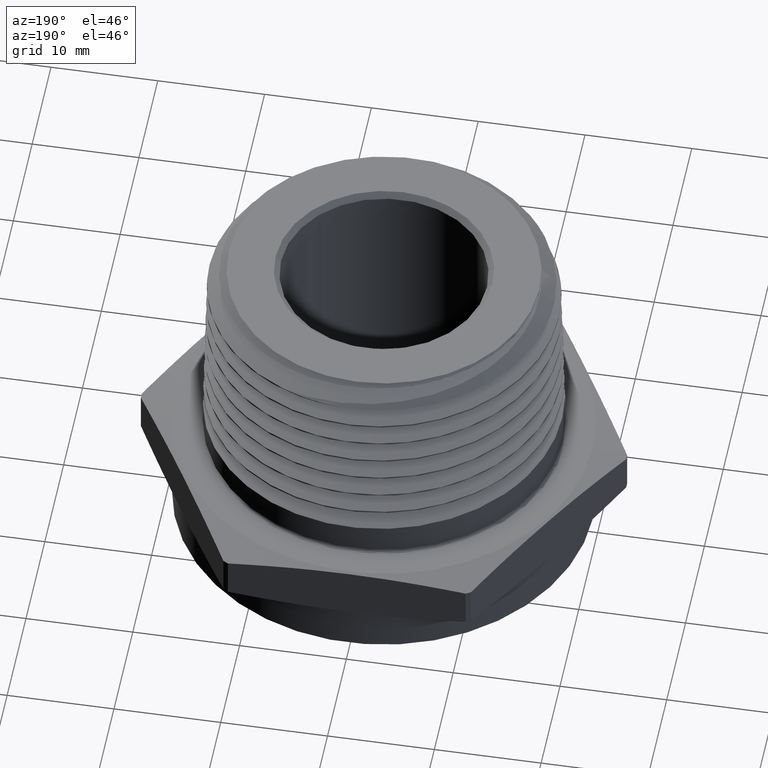
[diagram: clean part render]
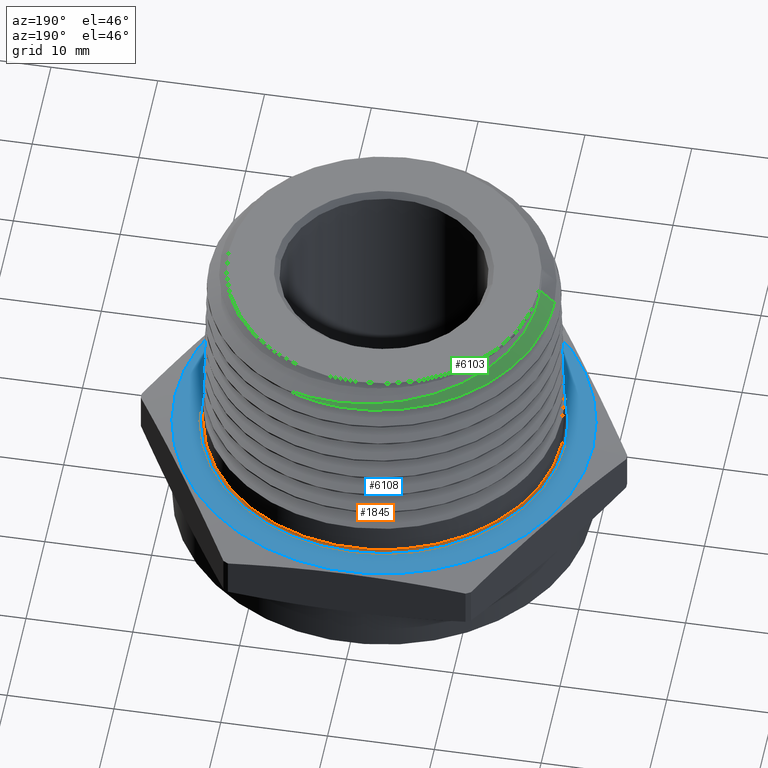
[diagram: same view with three faces highlighted in distinct colors, each labeled with its STEP entity id]
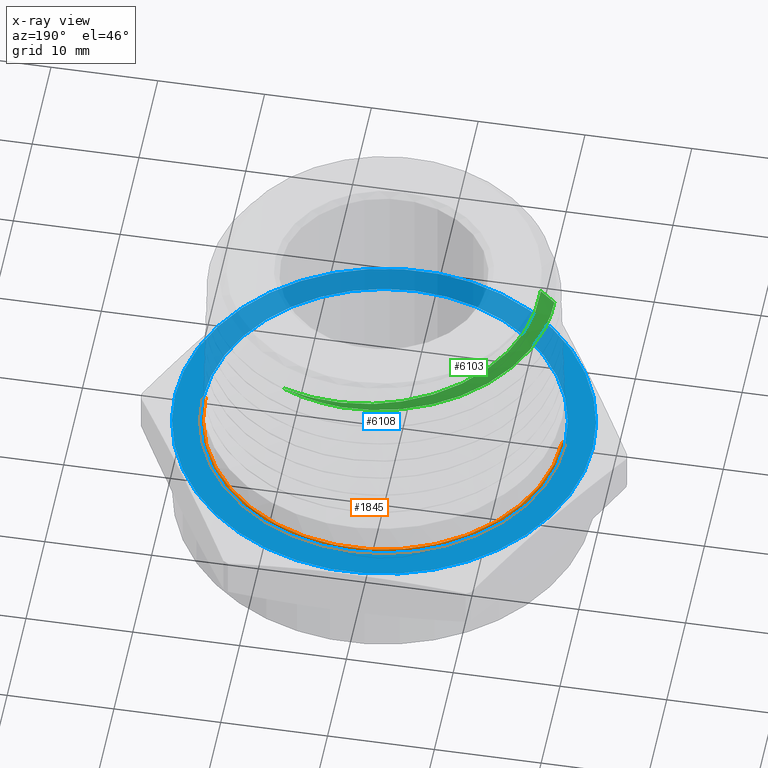
[diagram: x-ray of the same camera — body ghosted, the three highlighted faces saturated]
A machine part, auxiliary view with three faces highlighted in distinct colors.
The next image is the same camera in x-ray (body ghosted, the three faces saturated) — at least one of them is partly hidden behind the body in this view.
Their STEP definitions:

[orange] entity #1845 — the highlighted toroidal blend (fillet) surface has major radius 16.9672 mm and minor (blend) radius 0.254 mm.
#52 = AXIS2_PLACEMENT_3D ( 'NONE', #2555, #2556, #2557 ) ;
#54 = AXIS2_PLACEMENT_3D ( 'NONE', #2561, #2562, #2563 ) ;
#1845 = ADVANCED_FACE ( 'NONE', ( #5682 ), #5681, .F. ) ;
#2546 = CARTESIAN_POINT ( 'NONE',  ( 0.0000000000000000000, 0.0000000000000000000, 0.2000000000000000100 ) ) ;
#2547 = DIRECTION ( 'NONE',  ( 0.0000000000000000000, -0.0000000000000000000, -1.000000000000000000 ) ) ;
#2548 = DIRECTION ( 'NONE',  ( 1.000000000000000000, 0.0000000000000000000, 0.0000000000000000000 ) ) ;
#2555 = CARTESIAN_POINT ( 'NONE',  ( -0.6680000000000000400, 8.180640618304319800E-017, 0.2099999999999999400 ) ) ;
#2556 = DIRECTION ( 'NONE',  ( 1.224646799147353200E-016, 1.000000000000000000, 0.0000000000000000000 ) ) ;
#2557 = DIRECTION ( 'NONE',  ( -1.000000000000000000, 1.224646799147354400E-016, 0.0000000000000000000 ) ) ;
#2561 = CARTESIAN_POINT ( 'NONE',  ( 0.6680000000000000400, 0.0000000000000000000, 0.2099999999999999400 ) ) ;
#2562 = DIRECTION ( 'NONE',  ( 0.0000000000000000000, -1.000000000000000000, 0.0000000000000000000 ) ) ;
#2563 = DIRECTION ( 'NONE',  ( 0.0000000000000000000, 0.0000000000000000000, -1.000000000000000000 ) ) ;
#2630 = CARTESIAN_POINT ( 'NONE',  ( -0.6580000000000000300, 0.0000000000000000000, 0.2099999999999999400 ) ) ;
#2633 = CARTESIAN_POINT ( 'NONE',  ( 0.6580000000000000300, 8.058175938389584700E-017, 0.2099999999999999400 ) ) ;
#2635 = CARTESIAN_POINT ( 'NONE',  ( 0.6680000000000000400, 0.0000000000000000000, 0.1999999999999999800 ) ) ;
#2636 = CARTESIAN_POINT ( 'NONE',  ( -0.6680000000000000400, 8.180640618304318600E-017, 0.1999999999999999800 ) ) ;
#3448 = CARTESIAN_POINT ( 'NONE',  ( 0.0000000000000000000, 0.0000000000000000000, 0.2099999999999999400 ) ) ;
#3450 = DIRECTION ( 'NONE',  ( -0.0000000000000000000, 0.0000000000000000000, 1.000000000000000000 ) ) ;
#3452 = DIRECTION ( 'NONE',  ( 1.000000000000000000, 0.0000000000000000000, 0.0000000000000000000 ) ) ;
#5177 = ORIENTED_EDGE ( 'NONE', *, *, #5388, .F. ) ;
#5178 = ORIENTED_EDGE ( 'NONE', *, *, #6584, .F. ) ;
#5179 = ORIENTED_EDGE ( 'NONE', *, *, #5390, .T. ) ;
#5180 = ORIENTED_EDGE ( 'NONE', *, *, #5349, .F. ) ;
#5349 = EDGE_CURVE ( 'NONE', #5620, #5619, #5539, .T. ) ;
#5388 = EDGE_CURVE ( 'NONE', #5614, #5620, #5546, .T. ) ;
#5390 = EDGE_CURVE ( 'NONE', #5617, #5619, #5548, .T. ) ;
#5539 = CIRCLE ( 'NONE', #6576, 0.6680000000000000400 ) ;
#5546 = CIRCLE ( 'NONE', #52, 0.01000000000000003000 ) ;
#5548 = CIRCLE ( 'NONE', #54, 0.009999999999999995000 ) ;
#5614 = VERTEX_POINT ( 'NONE', #2630 ) ;
#5617 = VERTEX_POINT ( 'NONE', #2633 ) ;
#5619 = VERTEX_POINT ( 'NONE', #2635 ) ;
#5620 = VERTEX_POINT ( 'NONE', #2636 ) ;
#5681 = TOROIDAL_SURFACE ( 'NONE', #6526, 0.6680000000000000400, 0.01000000000000000000 ) ;
#5682 = FACE_OUTER_BOUND ( 'NONE', #6048, .T. ) ;
#5783 = CIRCLE ( 'NONE', #6135, 0.6580000000000000300 ) ;
#6048 = EDGE_LOOP ( 'NONE', ( #5177, #5178, #5179, #5180 ) ) ;
#6135 = AXIS2_PLACEMENT_3D ( 'NONE', #3448, #3450, #3452 ) ;
#6526 = AXIS2_PLACEMENT_3D ( 'NONE', #6715, #6714, #6717 ) ;
#6576 = AXIS2_PLACEMENT_3D ( 'NONE', #2546, #2547, #2548 ) ;
#6584 = EDGE_CURVE ( 'NONE', #5617, #5614, #5783, .T. ) ;
#6714 = DIRECTION ( 'NONE',  ( -0.0000000000000000000, 0.0000000000000000000, 1.000000000000000000 ) ) ;
#6715 = CARTESIAN_POINT ( 'NONE',  ( 0.0000000000000000000, 0.0000000000000000000, 0.2099999999999999400 ) ) ;
#6717 = DIRECTION ( 'NONE',  ( 1.000000000000000000, 0.0000000000000000000, 0.0000000000000000000 ) ) ;

[blue] entity #6108 — the highlighted planar face has unit normal (0, 0, 1).
#36 = EDGE_CURVE ( 'NONE', #4817, #5229, #5634, .T. ) ;
#53 = AXIS2_PLACEMENT_3D ( 'NONE', #2558, #2559, #2560 ) ;
#88 = AXIS2_PLACEMENT_3D ( 'NONE', #3269, #3268, #3273 ) ;
#2546 = CARTESIAN_POINT ( 'NONE',  ( 0.0000000000000000000, 0.0000000000000000000, 0.2000000000000000100 ) ) ;
#2547 = DIRECTION ( 'NONE',  ( 0.0000000000000000000, -0.0000000000000000000, -1.000000000000000000 ) ) ;
#2548 = DIRECTION ( 'NONE',  ( 1.000000000000000000, 0.0000000000000000000, 0.0000000000000000000 ) ) ;
#2558 = CARTESIAN_POINT ( 'NONE',  ( 0.0000000000000000000, 0.0000000000000000000, 0.2000000000000000100 ) ) ;
#2559 = DIRECTION ( 'NONE',  ( 0.0000000000000000000, -0.0000000000000000000, -1.000000000000000000 ) ) ;
#2560 = DIRECTION ( 'NONE',  ( 1.000000000000000000, 0.0000000000000000000, 0.0000000000000000000 ) ) ;
#2635 = CARTESIAN_POINT ( 'NONE',  ( 0.6680000000000000400, 0.0000000000000000000, 0.1999999999999999800 ) ) ;
#2636 = CARTESIAN_POINT ( 'NONE',  ( -0.6680000000000000400, 8.180640618304318600E-017, 0.1999999999999999800 ) ) ;
#3268 = DIRECTION ( 'NONE',  ( -0.0000000000000000000, 0.0000000000000000000, 1.000000000000000000 ) ) ;
#3269 = CARTESIAN_POINT ( 'NONE',  ( -0.4503332099679081500, -0.7800000000000000300, 0.2000000000000000100 ) ) ;
#3271 = PLANE ( 'NONE',  #88 ) ;
#3273 = DIRECTION ( 'NONE',  ( 1.000000000000000000, 0.0000000000000000000, 0.0000000000000000000 ) ) ;
#4406 = CARTESIAN_POINT ( 'NONE',  ( -0.7700000000000000200, 0.0000000000000000000, 0.2000000000000000100 ) ) ;
#4506 = CARTESIAN_POINT ( 'NONE',  ( 0.7700000000000000200, 9.429780353434618500E-017, 0.1999999999999998200 ) ) ;
#4587 = CARTESIAN_POINT ( 'NONE',  ( 2.509973095904768000E-017, 0.0000000000000000000, 0.1999999999999999300 ) ) ;
#4588 = DIRECTION ( 'NONE',  ( -1.254986547952384500E-016, -0.0000000000000000000, -1.000000000000000000 ) ) ;
#4589 = DIRECTION ( 'NONE',  ( -1.000000000000000000, 0.0000000000000000000, 1.330445451459868500E-016 ) ) ;
#4745 = AXIS2_PLACEMENT_3D ( 'NONE', #6615, #6616, #6617 ) ;
#4817 = VERTEX_POINT ( 'NONE', #4406 ) ;
#5229 = VERTEX_POINT ( 'NONE', #4506 ) ;
#5320 = EDGE_CURVE ( 'NONE', #5229, #4817, #5502, .T. ) ;
#5349 = EDGE_CURVE ( 'NONE', #5620, #5619, #5539, .T. ) ;
#5389 = EDGE_CURVE ( 'NONE', #5619, #5620, #5544, .T. ) ;
#5502 = CIRCLE ( 'NONE', #6565, 0.7700000000000000200 ) ;
#5539 = CIRCLE ( 'NONE', #6576, 0.6680000000000000400 ) ;
#5544 = CIRCLE ( 'NONE', #53, 0.6680000000000000400 ) ;
#5619 = VERTEX_POINT ( 'NONE', #2635 ) ;
#5620 = VERTEX_POINT ( 'NONE', #2636 ) ;
#5634 = CIRCLE ( 'NONE', #4745, 0.7700000000000000200 ) ;
#5753 = FACE_BOUND ( 'NONE', #6079, .T. ) ;
#5755 = FACE_OUTER_BOUND ( 'NONE', #6080, .T. ) ;
#6002 = ORIENTED_EDGE ( 'NONE', *, *, #5389, .T. ) ;
#6003 = ORIENTED_EDGE ( 'NONE', *, *, #5349, .T. ) ;
#6004 = ORIENTED_EDGE ( 'NONE', *, *, #36, .F. ) ;
#6005 = ORIENTED_EDGE ( 'NONE', *, *, #5320, .F. ) ;
#6079 = EDGE_LOOP ( 'NONE', ( #6002, #6003 ) ) ;
#6080 = EDGE_LOOP ( 'NONE', ( #6004, #6005 ) ) ;
#6108 = ADVANCED_FACE ( 'NONE', ( #5753, #5755 ), #3271, .T. ) ;
#6565 = AXIS2_PLACEMENT_3D ( 'NONE', #4587, #4588, #4589 ) ;
#6576 = AXIS2_PLACEMENT_3D ( 'NONE', #2546, #2547, #2548 ) ;
#6615 = CARTESIAN_POINT ( 'NONE',  ( 2.509973095904768000E-017, 0.0000000000000000000, 0.1999999999999999300 ) ) ;
#6616 = DIRECTION ( 'NONE',  ( -1.254986547952384500E-016, -0.0000000000000000000, -1.000000000000000000 ) ) ;
#6617 = DIRECTION ( 'NONE',  ( -1.000000000000000000, 0.0000000000000000000, 1.330445451459868500E-016 ) ) ;

[green] entity #6103 — the highlighted conical surface has half-angle 45 deg.
#13 = EDGE_CURVE ( 'NONE', #4804, #4803, #5626, .T. ) ;
#15 = EDGE_CURVE ( 'NONE', #4804, #5259, #5409, .T. ) ;
#16 = EDGE_CURVE ( 'NONE', #5234, #4803, #5410, .T. ) ;
#82 = AXIS2_PLACEMENT_3D ( 'NONE', #3252, #3253, #3251 ) ;
#3251 = DIRECTION ( 'NONE',  ( -1.000000000000000000, 0.0000000000000000000, 0.0000000000000000000 ) ) ;
#3252 = CARTESIAN_POINT ( 'NONE',  ( 0.0000000000000000000, 0.0000000000000000000, 0.9027971720943887000 ) ) ;
#3253 = DIRECTION ( 'NONE',  ( -0.0000000000000000000, -0.0000000000000000000, -1.000000000000000000 ) ) ;
#3599 = CARTESIAN_POINT ( 'NONE',  ( 0.0000000000000000000, 0.0000000000000000000, 0.9190800544205554000 ) ) ;
#3601 = DIRECTION ( 'NONE',  ( -0.0000000000000000000, -0.0000000000000000000, -1.000000000000000000 ) ) ;
#3603 = DIRECTION ( 'NONE',  ( -1.000000000000000000, 0.0000000000000000000, 0.0000000000000000000 ) ) ;
#4396 = CARTESIAN_POINT ( 'NONE',  ( -0.6283225450993632500, 4.889100257645358200E-013, 0.9336774549006376900 ) ) ;
#4397 = CARTESIAN_POINT ( 'NONE',  ( -0.5782752292204644800, 3.274842165956694300E-013, 0.9837247707795356800 ) ) ;
#4519 = CARTESIAN_POINT ( 'NONE',  ( 0.04410640094814422000, 0.6414052399374975400, 0.9190800544205554000 ) ) ;
#4542 = CARTESIAN_POINT ( 'NONE',  ( 0.2697484973617390600, 0.5835938695659517200, 0.9190800544205554000 ) ) ;
#4708 = EDGE_CURVE ( 'NONE', #5234, #5259, #5425, .T. ) ;
#4803 = VERTEX_POINT ( 'NONE', #4396 ) ;
#4804 = VERTEX_POINT ( 'NONE', #4397 ) ;
#4844 = CARTESIAN_POINT ( 'NONE',  ( -0.1291728670032285000, 0.6277182786754083000, 0.9214974034170692100 ) ) ;
#4845 = CARTESIAN_POINT ( 'NONE',  ( -0.5038835120867772900, 0.3856187828513303300, 0.9278614501530870800 ) ) ;
#4849 = CARTESIAN_POINT ( 'NONE',  ( -0.3580366091997817000, 0.4949788745045972100, 0.9532486770410064600 ) ) ;
#4852 = CARTESIAN_POINT ( 'NONE',  ( -0.5754901931969085300, 0.1023629862541672000, 0.9780408152344303200 ) ) ;
#4853 = CARTESIAN_POINT ( 'NONE',  ( 0.04410640094814422000, 0.6414052399374975400, 0.9190800544205554000 ) ) ;
#4854 = CARTESIAN_POINT ( 'NONE',  ( -0.4905521338098494700, 0.4029337313545868800, 0.9275555028913532500 ) ) ;
#4855 = CARTESIAN_POINT ( 'NONE',  ( -0.1712816809586251200, 0.6169304472873021700, 0.9221028986637400700 ) ) ;
#4856 = CARTESIAN_POINT ( 'NONE',  ( -0.5544158245478665300, 0.2021377121919719900, 0.9724433789133220000 ) ) ;
#4857 = CARTESIAN_POINT ( 'NONE',  ( -0.04301417287718850600, 0.6417499214618435100, 0.9202865603072609700 ) ) ;
#4858 = CARTESIAN_POINT ( 'NONE',  ( -0.4621374801503261900, 0.4361249314153705100, 0.9269418621697133000 ) ) ;
#4859 = CARTESIAN_POINT ( 'NONE',  ( -0.5408322365174119700, 0.3321933841693599500, 0.9287725555635533100 ) ) ;
#4860 = CARTESIAN_POINT ( 'NONE',  ( -0.4471906026599913300, 0.4518548415220121600, 0.9266377158060300500 ) ) ;
#4861 = CARTESIAN_POINT ( 'NONE',  ( -0.4002031964311008600, 0.4965315961657489900, 0.9257310148434547700 ) ) ;
#4862 = CARTESIAN_POINT ( 'NONE',  ( -0.3660421188493563300, 0.5229960302919680600, 0.9251279785155393000 ) ) ;
#4863 = CARTESIAN_POINT ( 'NONE',  ( -0.1311117142126263000, 0.6086752527680319200, 0.9398931432594783700 ) ) ;
#4864 = CARTESIAN_POINT ( 'NONE',  ( -0.3104239841555078700, 0.5575691653280147000, 0.9242147721350375500 ) ) ;
#4865 = CARTESIAN_POINT ( 'NONE',  ( -0.2912658111656816800, 0.5681483700520408900, 0.9239097320244495900 ) ) ;
#4866 = CARTESIAN_POINT ( 'NONE',  ( -0.5718437529027253800, 0.1276451828942168900, 0.9766363578434675800 ) ) ;
#4867 = CARTESIAN_POINT ( 'NONE',  ( -0.2034913068138734800, 0.5842401972764722500, 0.9438566663621034100 ) ) ;
#4868 = CARTESIAN_POINT ( 'NONE',  ( -0.2523258671832870900, 0.5871394006566421600, 0.9233045592838830000 ) ) ;
#4870 = CARTESIAN_POINT ( 'NONE',  ( -0.3961997529985840600, 0.4614841658839422000, 0.9559190479875979700 ) ) ;
#4871 = CARTESIAN_POINT ( 'NONE',  ( -0.3050216810752681700, 0.5308749679102926500, 0.9498701530135238400 ) ) ;
#4876 = CARTESIAN_POINT ( 'NONE',  ( -0.2941154152704837900, 0.5377680807815983200, 0.9491911200069774700 ) ) ;
#4879 = CARTESIAN_POINT ( 'NONE',  ( -0.1076332887552374900, 0.6320785348876915000, 0.9211927445842531500 ) ) ;
#4881 = CARTESIAN_POINT ( 'NONE',  ( 0.02010530832360203300, 0.6301756819904215100, 0.9320170440454244000 ) ) ;
#4883 = CARTESIAN_POINT ( 'NONE',  ( -0.2720364747525571000, 0.5507673225860237900, 0.9478462534385825300 ) ) ;
#4884 = CARTESIAN_POINT ( 'NONE',  ( -0.2608403269420439000, 0.5568922117506953700, 0.9471788170331904000 ) ) ;
#4886 = CARTESIAN_POINT ( 'NONE',  ( -0.2267945689784152700, 0.5741720065212850800, 0.9451830328060350000 ) ) ;
#4892 = CARTESIAN_POINT ( 'NONE',  ( -0.1556776799463705200, 0.6014855311601703400, 0.9412132048061757600 ) ) ;
#4893 = CARTESIAN_POINT ( 'NONE',  ( -0.08097408228598210200, 0.6200291040813559200, 0.9372328528343080200 ) ) ;
#4896 = CARTESIAN_POINT ( 'NONE',  ( -0.05580244168419957300, 0.6241033517460838900, 0.9359204519231547600 ) ) ;
#4897 = CARTESIAN_POINT ( 'NONE',  ( -0.005262352037625132700, 0.6291733186150217900, 0.9333160956669082100 ) ) ;
#4898 = CARTESIAN_POINT ( 'NONE',  ( 0.05830357889111763300, 0.6293681189188618000, 0.9300650632995713900 ) ) ;
#4899 = CARTESIAN_POINT ( 'NONE',  ( 0.07106094898147108400, 0.6287119757329342500, 0.9294145585776001400 ) ) ;
#4904 = CARTESIAN_POINT ( 'NONE',  ( 0.09662564964570551100, 0.6266120287156937700, 0.9281111418394644200 ) ) ;
#4906 = CARTESIAN_POINT ( 'NONE',  ( 0.1094317807253628900, 0.6251650846227156900, 0.9274582718988585400 ) ) ;
#4907 = CARTESIAN_POINT ( 'NONE',  ( 0.1727956314354577600, 0.6160609696359855600, 0.9242119778856526800 ) ) ;
#4908 = CARTESIAN_POINT ( 'NONE',  ( 0.2220121870711585800, 0.6028127258656126300, 0.9216632551212740100 ) ) ;
#4918 = CARTESIAN_POINT ( 'NONE',  ( -0.5796951784476278600, 0.02545253042749659500, 0.9823048215523573200 ) ) ;
#4919 = CARTESIAN_POINT ( 'NONE',  ( -0.4700039936106894000, 0.3730492388204942900, 0.9620769431014313300 ) ) ;
#4920 = CARTESIAN_POINT ( 'NONE',  ( -0.4467615121016589900, 0.4036725399115164100, 0.9600173493875141500 ) ) ;
#4922 = CARTESIAN_POINT ( 'NONE',  ( -0.5782752292204644800, 3.274842165956694300E-013, 0.9837247707795356800 ) ) ;
#4923 = DIRECTION ( 'NONE',  ( -0.7071067811865516800, 0.0000000000000000000, -0.7071067811865433500 ) ) ;
#4927 = CARTESIAN_POINT ( 'NONE',  ( -0.6592028279056124700, 0.0000000000000000000, 0.9027971720943887000 ) ) ;
#4934 = CARTESIAN_POINT ( 'NONE',  ( -0.4914517421086958000, 0.3414176769750334500, 0.9641341393016272800 ) ) ;
#4935 = CARTESIAN_POINT ( 'NONE',  ( -0.4624985820372197200, 0.3833930353726654500, 0.9613912243205539100 ) ) ;
#4936 = CARTESIAN_POINT ( 'NONE',  ( -0.5373285333937196700, 0.2506567212514394500, 0.9696393050046168100 ) ) ;
#4937 = CARTESIAN_POINT ( 'NONE',  ( 0.2697484973617390600, 0.5835938695659517200, 0.9190800544205554000 ) ) ;
#4939 = CARTESIAN_POINT ( 'NONE',  ( -0.2324579007135414400, 0.5956047185023369800, 0.9230040947289219800 ) ) ;
#4945 = CARTESIAN_POINT ( 'NONE',  ( -0.5272675305829072100, 0.2741778500030618300, 0.9682486678878428100 ) ) ;
#4946 = CARTESIAN_POINT ( 'NONE',  ( -0.5613101936249869100, 0.1775331022766235000, 0.9738340718980128500 ) ) ;
#4947 = CARTESIAN_POINT ( 'NONE',  ( -0.5043343353606278800, 0.3195343415162147900, 0.9655006962472545400 ) ) ;
#4948 = CARTESIAN_POINT ( 'NONE',  ( -0.4385383842287730600, 0.4135915789652912500, 0.9593301702589198700 ) ) ;
#4949 = CARTESIAN_POINT ( 'NONE',  ( -0.1919356305420585600, 0.6104998010872784200, 0.9224037179235687900 ) ) ;
#4951 = CARTESIAN_POINT ( 'NONE',  ( 0.0003843751511024606300, 0.6438046671889249300, 0.9196857534517215400 ) ) ;
#4955 = CARTESIAN_POINT ( 'NONE',  ( -0.5794372122380565500, 0.05110150103119674000, 0.9808803631047778900 ) ) ;
#5234 = VERTEX_POINT ( 'NONE', #4519 ) ;
#5259 = VERTEX_POINT ( 'NONE', #4542 ) ;
#5409 = B_SPLINE_CURVE_WITH_KNOTS ( 'NONE', 3,
 ( #4922, #4918, #4955, #4852, #4866, #4946, #4856, #4936, #4945, #4947, #4934, #4919, #4935, #4920, #4948, #4870, #4849, #4871, #4876, #4883, #4884, #4886, #4867, #4892, #4863, #4893, #4896, #4897, #4881, #4898, #4899, #4904, #4906, #4907, #4908, #4937 ),
 .UNSPECIFIED., .F., .F.,
 ( 4, 2, 2, 2, 2, 2, 2, 2, 2, 2, 2, 2, 2, 2, 2, 2, 2, 4 ),
 ( 0.002365730230864626400, 0.004310852816616497100, 0.006255975402368367300, 0.008201097988120235900, 0.01014622057387210500, 0.01209134315962397300, 0.01306390445249990700, 0.01403646574537584200, 0.01792671091687959200, 0.01889927220975552700, 0.01987183350263146300, 0.02181695608838333400, 0.02376207867413520800, 0.02570720125988708300, 0.02765232384563895800, 0.02862488513851489300, 0.02959744643139082500, 0.03348769160289456800 ),
 .UNSPECIFIED. ) ;
#5410 = B_SPLINE_CURVE_WITH_KNOTS ( 'NONE', 3,
 ( #4853, #4951, #4857, #4879, #4844, #4855, #4949, #4939, #4868, #4865, #4864, #4862, #4861, #4860, #4858, #4854, #4845, #4859, #6169, #6168, #6176, #6173, #6177, #6172, #6178, #6175, #6171, #6170 ),
 .UNSPECIFIED., .F., .F.,
 ( 4, 2, 2, 2, 2, 2, 2, 2, 2, 2, 2, 2, 2, 4 ),
 ( 0.0000000000000000000, 0.003309939199799869400, 0.004964908799699804300, 0.006619878399599738800, 0.008274847999499674100, 0.009929817599399608600, 0.01323975679919947800, 0.01489472639909941200, 0.01654969599899934800, 0.01985963519879921700, 0.02151460479869915200, 0.02316957439859908600, 0.02482454399849902100, 0.02647951359839895500 ),
 .UNSPECIFIED. ) ;
#5425 = CIRCLE ( 'NONE', #6550, 0.6429199455794455400 ) ;
#5626 = LINE ( 'NONE', #4927, #5627 ) ;
#5627 = VECTOR ( 'NONE', #4923, 39.37007874015748100 ) ;
#5743 = FACE_OUTER_BOUND ( 'NONE', #6070, .T. ) ;
#5748 = CONICAL_SURFACE ( 'NONE', #82, 0.6592028279056124700, 0.7853981633974541600 ) ;
#5873 = ORIENTED_EDGE ( 'NONE', *, *, #13, .F. ) ;
#5874 = ORIENTED_EDGE ( 'NONE', *, *, #15, .T. ) ;
#5875 = ORIENTED_EDGE ( 'NONE', *, *, #4708, .F. ) ;
#5876 = ORIENTED_EDGE ( 'NONE', *, *, #16, .T. ) ;
#6070 = EDGE_LOOP ( 'NONE', ( #5873, #5874, #5875, #5876 ) ) ;
#6103 = ADVANCED_FACE ( 'NONE', ( #5743 ), #5748, .T. ) ;
#6168 = CARTESIAN_POINT ( 'NONE',  ( -0.5870629331110648300, 0.2342639898435155400, 0.9302963868140565800 ) ) ;
#6169 = CARTESIAN_POINT ( 'NONE',  ( -0.5616495238305824200, 0.2943676231816454400, 0.9293782430520110000 ) ) ;
#6170 = CARTESIAN_POINT ( 'NONE',  ( -0.6283225450993632500, 4.889100257645358200E-013, 0.9336774549006376900 ) ) ;
#6171 = CARTESIAN_POINT ( 'NONE',  ( -0.6286304550296310000, 0.02172738889753006100, 0.9333695449703529600 ) ) ;
#6172 = CARTESIAN_POINT ( 'NONE',  ( -0.6208209802851182300, 0.1085261431831007600, 0.9321362402995637700 ) ) ;
#6173 = CARTESIAN_POINT ( 'NONE',  ( -0.6072601002818947000, 0.1720183441180761800, 0.9312205519252032500 ) ) ;
#6175 = CARTESIAN_POINT ( 'NONE',  ( -0.6277988761191775100, 0.04368678965569069300, 0.9330597588612381500 ) ) ;
#6176 = CARTESIAN_POINT ( 'NONE',  ( -0.5945633802259712200, 0.2135981704507927700, 0.9306068075028824900 ) ) ;
#6177 = CARTESIAN_POINT ( 'NONE',  ( -0.6125070210308528600, 0.1510029792277057800, 0.9315251844717924400 ) ) ;
#6178 = CARTESIAN_POINT ( 'NONE',  ( -0.6238873831988277500, 0.08706455200260454500, 0.9324433579042659100 ) ) ;
#6550 = AXIS2_PLACEMENT_3D ( 'NONE', #3599, #3601, #3603 ) ;